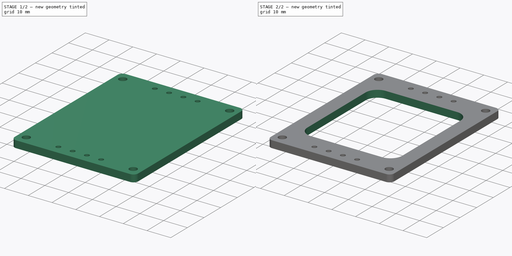
[diagram: build sequence overview — one tinted view per stage of 2, left to right]
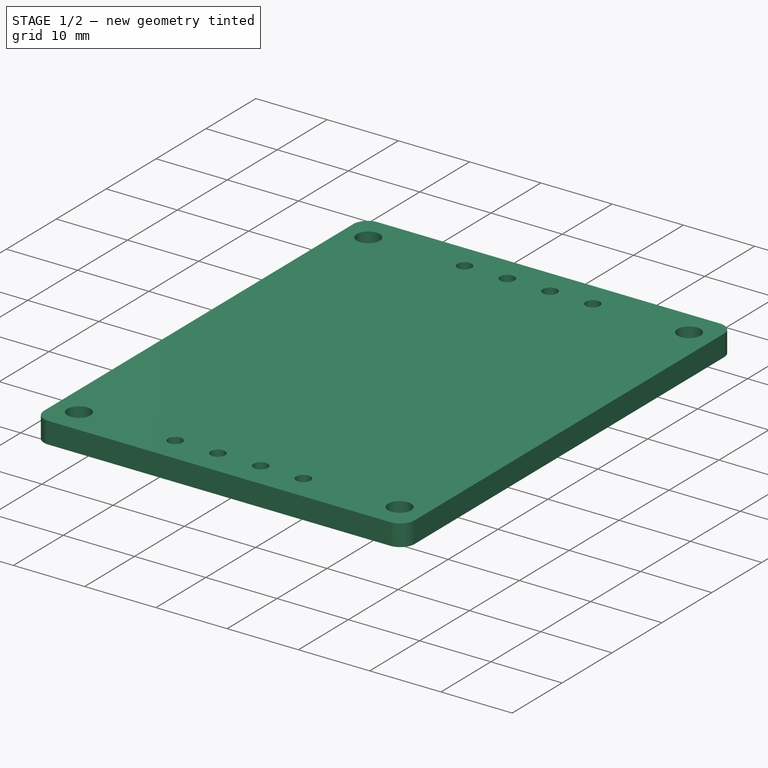
[diagram: stage 1 of 2 — iso view after this stage's code; geometry added in this stage tinted green]
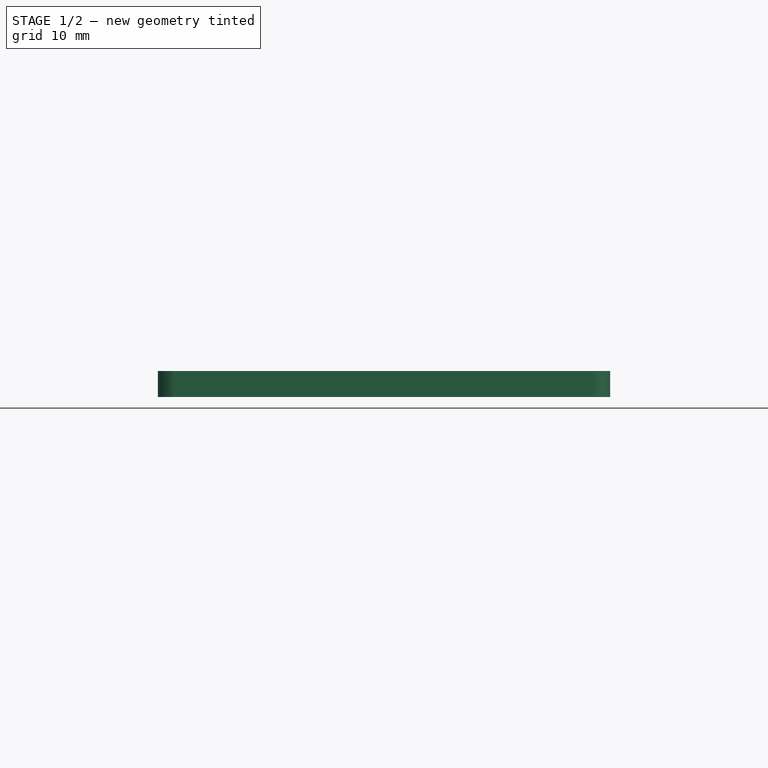
[diagram: stage 1 of 2 — front view after this stage's code; geometry added in this stage tinted green]
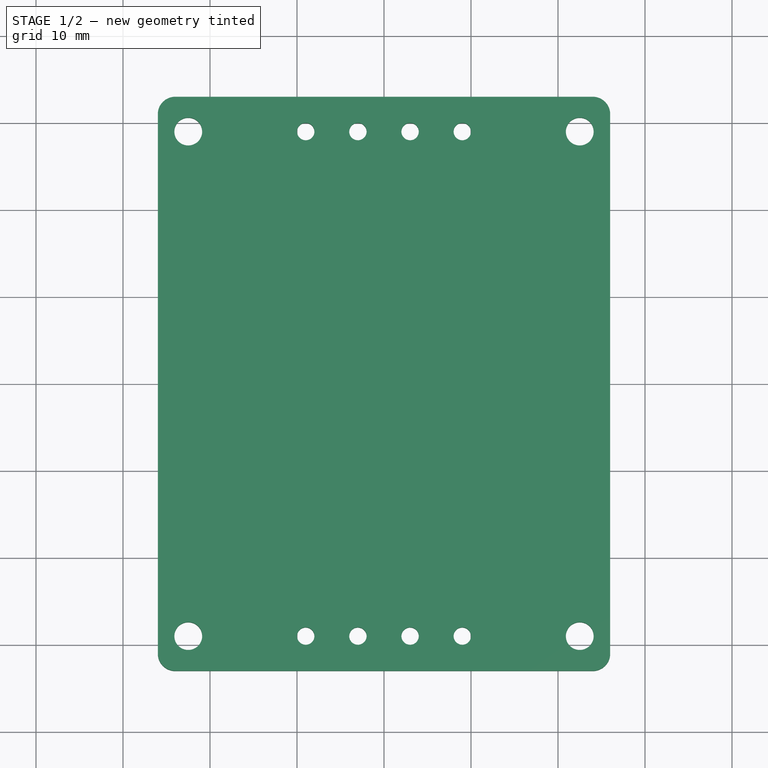
[diagram: stage 1 of 2 — top view after this stage's code; geometry added in this stage tinted green]
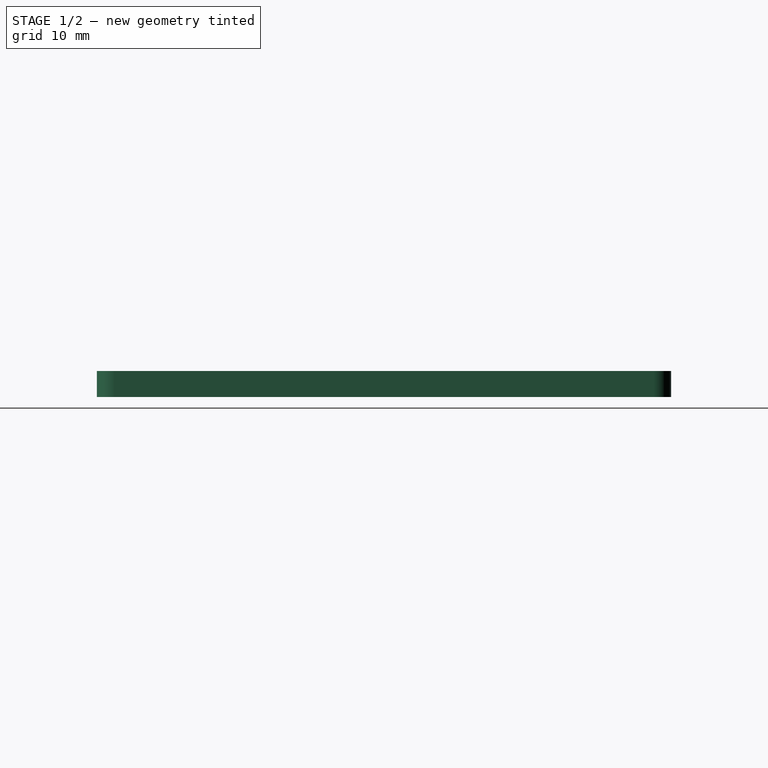
[diagram: stage 1 of 2 — right view after this stage's code; geometry added in this stage tinted green]
FCSTD DOCUMENT  (FreeCAD 0.19R)
Label: Transformer_pins_holder
License: All rights reserved
LicenseURL: http://en.wikipedia.org/wiki/All_rights_reserved
objects: Sketcher::SketchObject×2, PartDesign::Fillet×2, PartDesign::Pad×1, PartDesign::Pocket×1, PartDesign::Body×1
note: 11 computed .brp shape members not serialized (recipe doc carries the construction recipe); baked Part::Feature solids carry a one-line shape summary decoded from their .brp

FEATURE [Sketcher::SketchObject] Sketch
  FullyConstrained = true
  MapMode = 5
  Support = -> [XY_Plane]
  sketch-geometry (22):
    g0: LineSegment StartX=-26 StartY=33 StartZ=0 EndX=26 EndY=33 EndZ=0
    g1: LineSegment StartX=26 StartY=33 StartZ=0 EndX=26 EndY=-33 EndZ=0
    g2: LineSegment StartX=26 StartY=-33 StartZ=0 EndX=-26 EndY=-33 EndZ=0
    g3: LineSegment StartX=-26 StartY=-33 StartZ=0 EndX=-26 EndY=33 EndZ=0
    g4: Circle CenterX=-22.5 CenterY=29 CenterZ=0 NormalX=0 NormalY=0 NormalZ=1 AngleXU=0 Radius=1.6
    g5: Circle CenterX=-9 CenterY=29 CenterZ=0 NormalX=0 NormalY=0 NormalZ=1 AngleXU=0 Radius=1
    g6: Circle CenterX=-3 CenterY=29 CenterZ=0 NormalX=0 NormalY=0 NormalZ=1 AngleXU=0 Radius=1
    g7: Circle CenterX=3 CenterY=29 CenterZ=0 NormalX=0 NormalY=0 NormalZ=1 AngleXU=0 Radius=1
    g8: Circle CenterX=9 CenterY=29 CenterZ=0 NormalX=0 NormalY=0 NormalZ=1 AngleXU=0 Radius=1
    g9: Circle CenterX=22.5 CenterY=29 CenterZ=0 NormalX=0 NormalY=0 NormalZ=1 AngleXU=0 Radius=1.6
    g10: Circle CenterX=-22.5 CenterY=-29 CenterZ=0 NormalX=0 NormalY=0 NormalZ=1 AngleXU=0 Radius=1.6
    g11: Circle CenterX=-9 CenterY=-29 CenterZ=0 NormalX=0 NormalY=0 NormalZ=1 AngleXU=0 Radius=1
    g12: Circle CenterX=-3 CenterY=-29 CenterZ=0 NormalX=0 NormalY=0 NormalZ=1 AngleXU=0 Radius=1
    g13: Circle CenterX=3 CenterY=-29 CenterZ=0 NormalX=0 NormalY=0 NormalZ=1 AngleXU=0 Radius=1
    g14: Circle CenterX=9 CenterY=-29 CenterZ=0 NormalX=0 NormalY=0 NormalZ=1 AngleXU=0 Radius=1
    g15: Circle CenterX=22.5 CenterY=-29 CenterZ=0 NormalX=0 NormalY=0 NormalZ=1 AngleXU=0 Radius=1.6
    g16: LineSegment StartX=-9 StartY=29 StartZ=0 EndX=-3 EndY=29 EndZ=0
    g17: LineSegment StartX=-3 StartY=29 StartZ=0 EndX=3 EndY=29 EndZ=0
    g18: LineSegment StartX=3 StartY=29 StartZ=0 EndX=9 EndY=29 EndZ=0
    g19: LineSegment StartX=-9 StartY=-29 StartZ=0 EndX=-3 EndY=-29 EndZ=0
    g20: LineSegment StartX=-3 StartY=-29 StartZ=0 EndX=3 EndY=-29 EndZ=0
    g21: LineSegment StartX=3 StartY=-29 StartZ=0 EndX=9 EndY=-29 EndZ=0
  constraints (54):
    c: Coincident(g0,g1)
    c: Coincident(g1,g2)
    c: Coincident(g2,g3)
    c: Coincident(g3,g0)
    c: Horizontal(g0)
    c: Vertical(g3)
    c: Symmetric(g0,g1,g-1)
    c: Symmetric(g2,g1,g-2)
    c: DistanceX(g2,g2) = 52
    c: DistanceY(g3,g3) = 66
    c: Equal(g11,g12)
    c: Equal(g12,g13)
    c: Equal(g13,g14)
    c: Equal(g14,g8)
    c: Equal(g8,g7)
    c: Equal(g7,g6)
    c: Equal(g6,g5)
    c: Equal(g4,g9)
    c: Equal(g9,g15)
    c: Equal(g15,g10)
    c: Symmetric(g10,g4,g-1)
    c: Symmetric(g4,g9,g-2)
    c: Vertical(g9,g15)
    c: Horizontal(g10,g15)
    c: Symmetric(g6,g7,g-2)
    c: Coincident(g16,g5)
    c: Coincident(g16,g6)
    c: Coincident(g16,g17)
    c: Coincident(g17,g7)
    c: Coincident(g17,g18)
    c: Coincident(g18,g8)
    c: Horizontal(g18)
    c: Horizontal(g16)
    c: Coincident(g19,g11)
    c: Coincident(g19,g12)
    c: Coincident(g19,g20)
    c: Coincident(g20,g13)
    c: Coincident(g20,g21)
    c: Coincident(g21,g14)
    c: Horizontal(g21)
    c: Horizontal(g19)
    c: Symmetric(g12,g13,g-2)
    c: Equal(g19,g20)
    c: Equal(g20,g21)
    c: Equal(g21,g18)
    c: Equal(g18,g17)
    c: Equal(g17,g16)
    c: Horizontal(g5,g4)
    c: Horizontal(g11,g10)
    c: Diameter(g15) = 3.2
    c: Diameter(g14) = 2
    c: DistanceX(g19,g19) = 6
    c: DistanceX(g4,g9) = 45
    c: DistanceY(g15,g9) = 58
FEATURE [PartDesign::Pad] Pad
  Direction = (1,1,1)
  Length = 3
  Length2 = 100
  Profile = -> Sketch
  Type = 0
FEATURE [PartDesign::Fillet] Fillet
  Base = -> Pad [Edge5,Edge8,Edge2,Edge1]
  BaseFeature = -> Pad
  Radius = 2
  SupportTransform = false
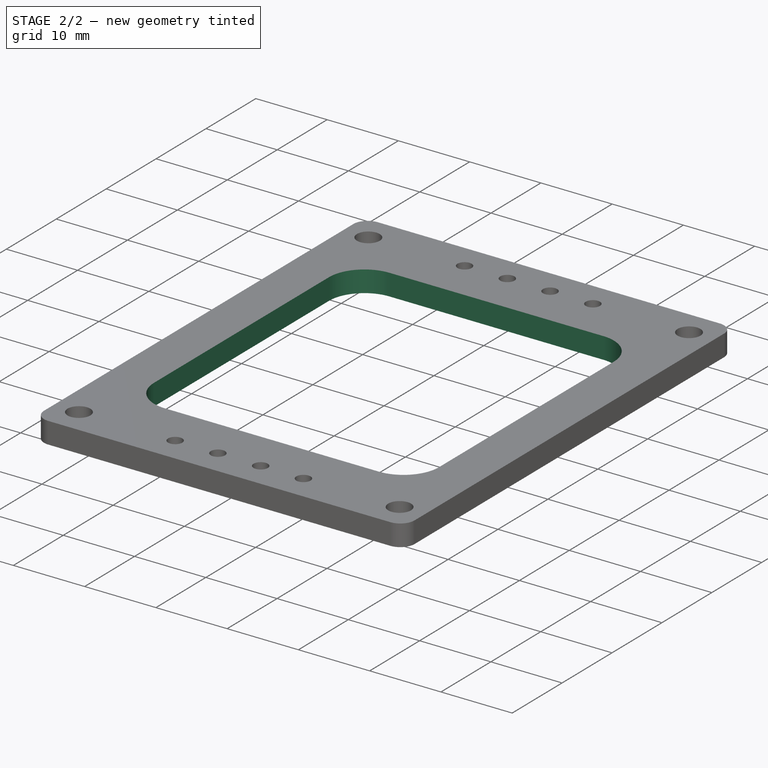
[diagram: stage 2 of 2 — iso view after this stage's code; geometry added in this stage tinted green]
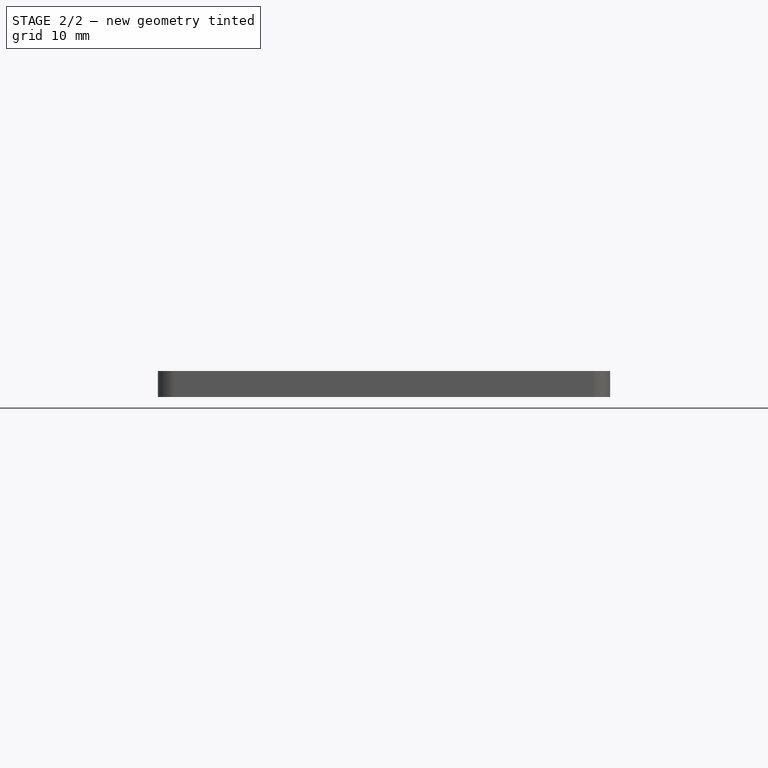
[diagram: stage 2 of 2 — front view after this stage's code; geometry added in this stage tinted green]
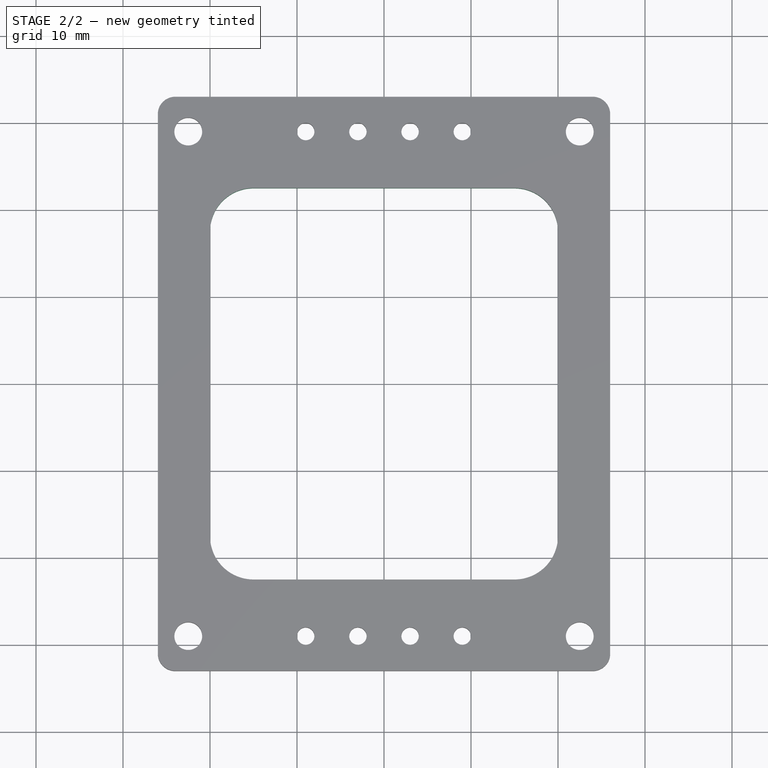
[diagram: stage 2 of 2 — top view after this stage's code; geometry added in this stage tinted green]
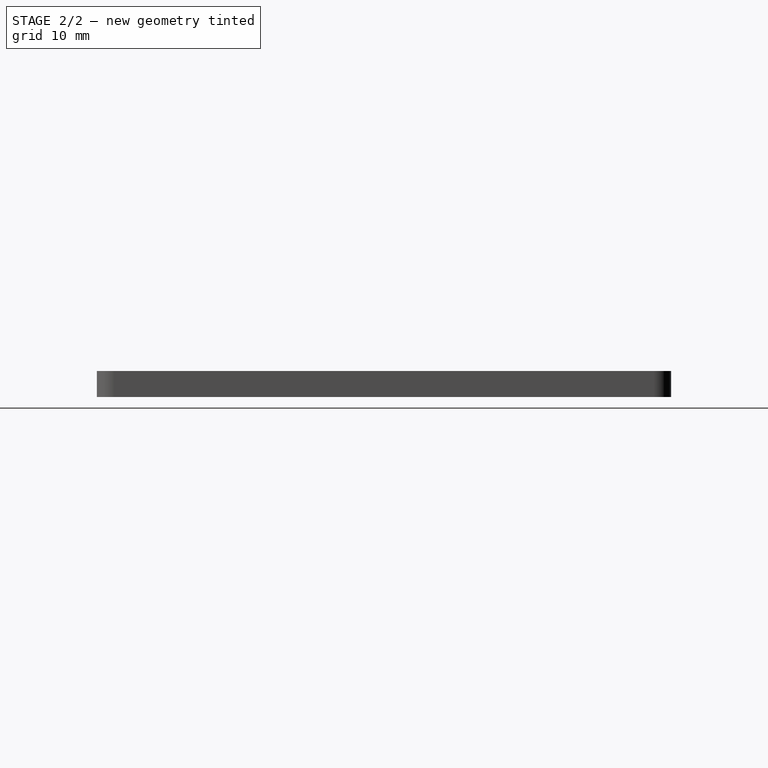
[diagram: stage 2 of 2 — right view after this stage's code; geometry added in this stage tinted green]
FEATURE [Sketcher::SketchObject] Sketch001
  FullyConstrained = true
  MapMode = 5
  Placement = pos=(0,0,3) rot=(0,0,1;0rad)
  Support = -> [Fillet]
  sketch-geometry (4):
    g0: LineSegment StartX=-20 StartY=22.5 StartZ=0 EndX=20 EndY=22.5 EndZ=0
    g1: LineSegment StartX=20 StartY=22.5 StartZ=0 EndX=20 EndY=-22.5 EndZ=0
    g2: LineSegment StartX=20 StartY=-22.5 StartZ=0 EndX=-20 EndY=-22.5 EndZ=0
    g3: LineSegment StartX=-20 StartY=-22.5 StartZ=0 EndX=-20 EndY=22.5 EndZ=0
  constraints (10):
    c: Coincident(g0,g1)
    c: Coincident(g1,g2)
    c: Coincident(g2,g3)
    c: Coincident(g3,g0)
    c: Horizontal(g0)
    c: Vertical(g3)
    c: Symmetric(g2,g1,g-2)
    c: Symmetric(g0,g1,g-1)
    c: DistanceX(g2,g2) = 40
    c: DistanceY(g3,g3) = 45
FEATURE [PartDesign::Pocket] Pocket
  BaseFeature = -> Fillet
  Length = 5
  Length2 = 100
  Profile = -> Sketch001
  Type = 0
FEATURE [PartDesign::Fillet] Fillet001
  Base = -> Pocket [Edge66,Edge69,Edge67,Edge68]
  BaseFeature = -> Pocket
  Radius = 5
  SupportTransform = false
FEATURE [PartDesign::Body] Body
  Group = -> [Sketch,Pad,Fillet,Sketch001,Pocket,Fillet001]
  Origin = -> Origin
  Tip = -> Fillet001
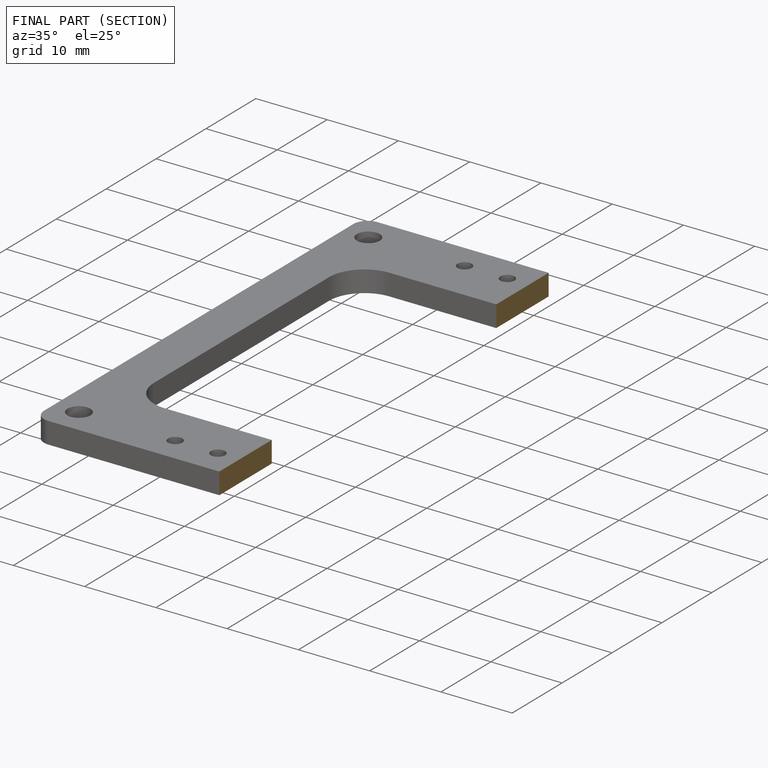
[diagram: finished part — half-section view (interior)]
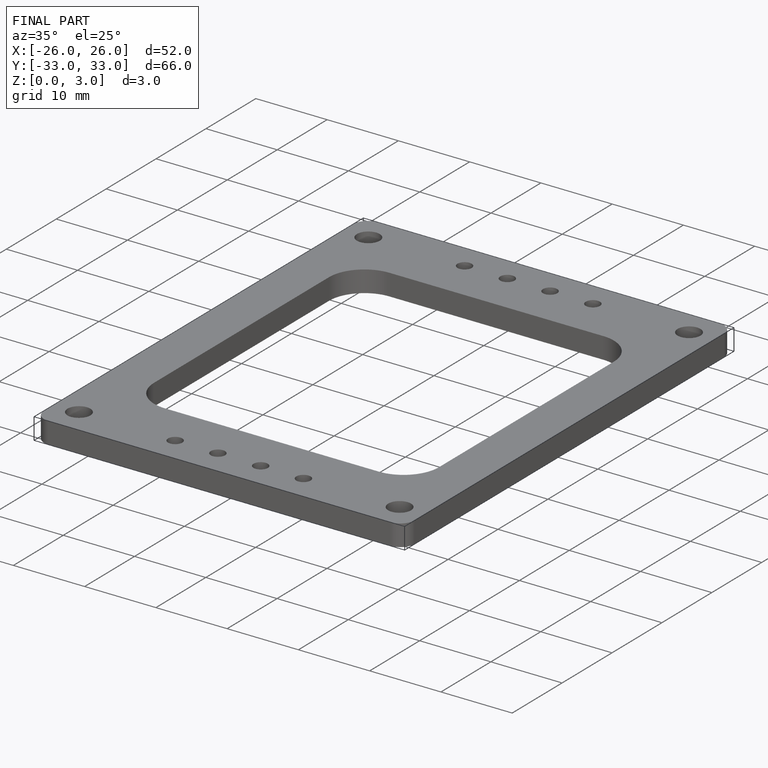
[diagram: finished part — iso view with bounding-box wireframe]
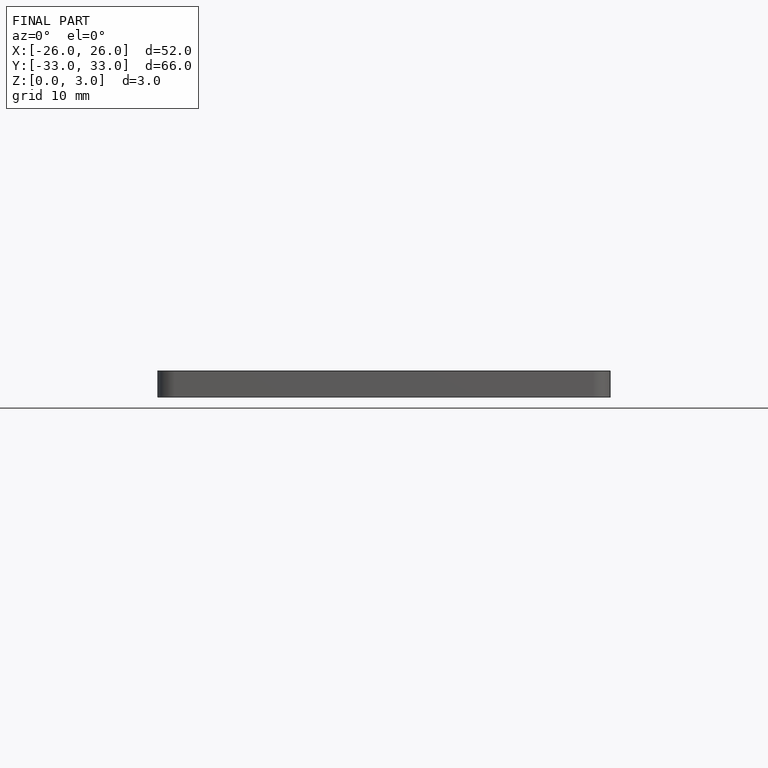
[diagram: finished part — front view with bounding-box wireframe]
